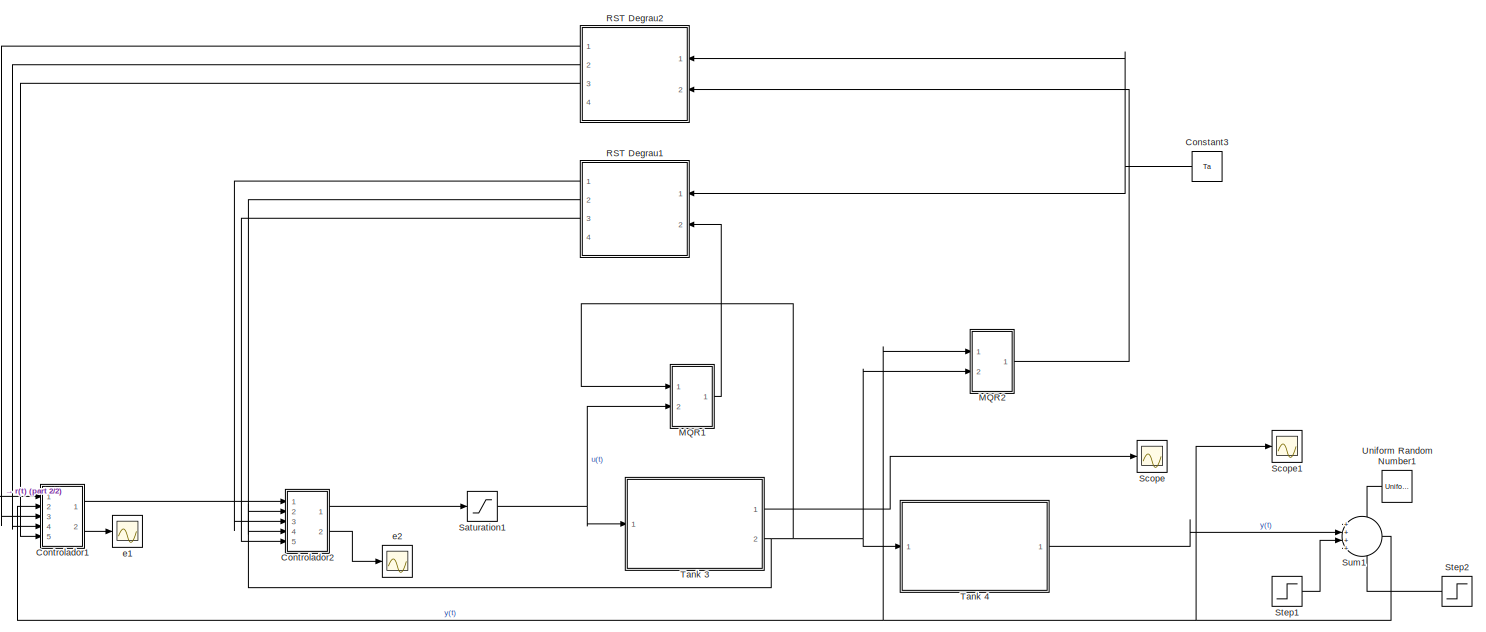
[diagram: root canvas - part 1/2, most of the canvas]
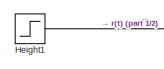
[diagram: root canvas - part 2/2, bottom left region]
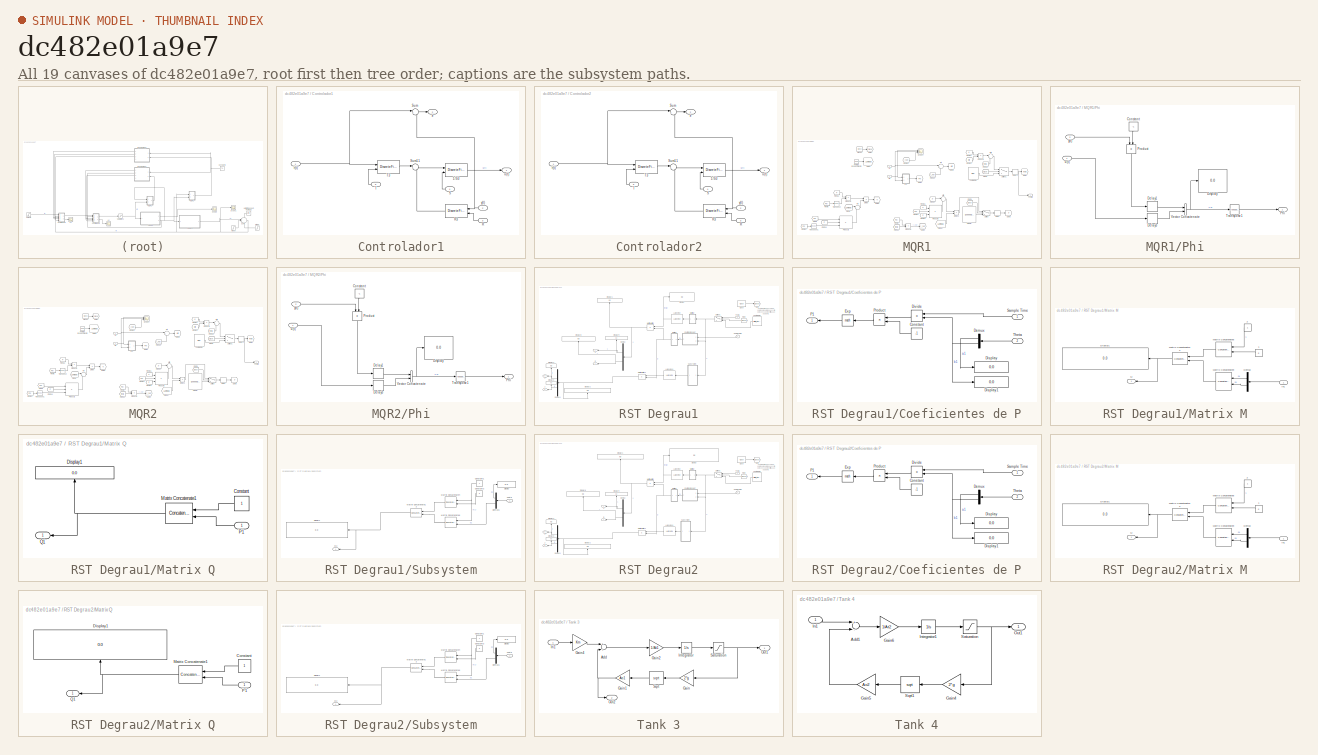
[diagram: thumbnail index - all 19 canvases of the model, root first then tree order]
MODEL slx_dc482e01a9e7
KIND model
CONFIG AbsTol = auto
CONFIG EnableMultiTasking = off
CONFIG FixedStep = 0.1
CONFIG InitFcn = g = 981\nKm = 3.3\nAo1 = 0.17\nAt1 = 15.5528\nAo2 = 0.17\nAt2 = 15.5528\nTa = 0.1\ninitial_theta = [rand(1,2)]
CONFIG MaxStep = auto
CONFIG MinStep = auto
CONFIG RelTol = 1e-3
CONFIG SampleTimeConstraint = Unconstrained
CONFIG Solver = FixedStepAuto
CONFIG SolverName = FixedStepAuto
CONFIG StartTime = 0.0
CONFIG StopTime = 1000
BLOCK [Constant] Constant3
  Value = Ta
BLOCK [SubSystem] Controlador1
  Ports = [5, 2]
  RequestExecContextInheritance = off
BLOCK [DiscreteFilter] Controlador1/1//S3
  Denominator = 1
  DenominatorSource = Input port
  InputPortMap = u0,p3
  Numerator = 1
  Ports = [2, 1]
  SampleTime = Ta
  a0EqualsOne = on
BLOCK [Inport] Controlador1/R
  IconDisplay = Port number
  Port = 3
BLOCK [DiscreteFilter] Controlador1/R3
  Denominator = 1
  InputPortMap = u0,p1
  Numerator = [-620.2 131.3]
  NumeratorSource = Input port
  Ports = [2, 1]
  SampleTime = Ta
BLOCK [Inport] Controlador1/S
  IconDisplay = Port number
  Port = 4
BLOCK [Sum] Controlador1/Sum
  IconShape = round
  InputSameDT = off
  Inputs = |+-
  OutDataTypeStr = Inherit: Inherit via internal rule
  Ports = [2, 1]
  SaturateOnIntegerOverflow = off
BLOCK [Sum] Controlador1/Sum11
  IconShape = round
  InputSameDT = off
  Inputs = |+-
  OutDataTypeStr = Inherit: Inherit via internal rule
  Ports = [2, 1]
  SaturateOnIntegerOverflow = off
BLOCK [Inport] Controlador1/T
  IconDisplay = Port number
  Port = 5
BLOCK [DiscreteFilter] Controlador1/T3
  Denominator = 1
  InputPortMap = u0,p1
  Numerator = 13.39
  NumeratorSource = Input port
  Ports = [2, 1]
  SampleTime = Ta
BLOCK [Outport] Controlador1/e 
  IconDisplay = Port number
  Port = 2
BLOCK [Inport] Controlador1/r(t)
  IconDisplay = Port number
BLOCK [Outport] Controlador1/u(t)
  IconDisplay = Port number
BLOCK [Inport] Controlador1/y(t)
  IconDisplay = Port number
  Port = 2
BLOCK [SubSystem] Controlador2
  Ports = [5, 2]
  RequestExecContextInheritance = off
BLOCK [DiscreteFilter] Controlador2/1//S3
  Denominator = 1
  DenominatorSource = Input port
  InputPortMap = u0,p3
  Numerator = 1
  Ports = [2, 1]
  SampleTime = Ta
  a0EqualsOne = on
BLOCK [Inport] Controlador2/R
  IconDisplay = Port number
  Port = 3
BLOCK [DiscreteFilter] Controlador2/R3
  Denominator = 1
  InputPortMap = u0,p1
  Numerator = [-620.2 131.3]
  NumeratorSource = Input port
  Ports = [2, 1]
  SampleTime = Ta
BLOCK [Inport] Controlador2/S
  IconDisplay = Port number
  Port = 4
BLOCK [Sum] Controlador2/Sum
  IconShape = round
  InputSameDT = off
  Inputs = |+-
  OutDataTypeStr = Inherit: Inherit via internal rule
  Ports = [2, 1]
  SaturateOnIntegerOverflow = off
BLOCK [Sum] Controlador2/Sum11
  IconShape = round
  InputSameDT = off
  Inputs = |+-
  OutDataTypeStr = Inherit: Inherit via internal rule
  Ports = [2, 1]
  SaturateOnIntegerOverflow = off
BLOCK [Inport] Controlador2/T
  IconDisplay = Port number
  Port = 5
BLOCK [DiscreteFilter] Controlador2/T3
  Denominator = 1
  InputPortMap = u0,p1
  Numerator = 13.39
  NumeratorSource = Input port
  Ports = [2, 1]
  SampleTime = Ta
BLOCK [Outport] Controlador2/e 
  IconDisplay = Port number
  Port = 2
BLOCK [Inport] Controlador2/r(t)
  IconDisplay = Port number
BLOCK [Outport] Controlador2/u(t)
  IconDisplay = Port number
BLOCK [Inport] Controlador2/y(t)
  IconDisplay = Port number
  Port = 2
BLOCK [Step] Height1
  After = 10
  SampleTime = 0
  Time = 0
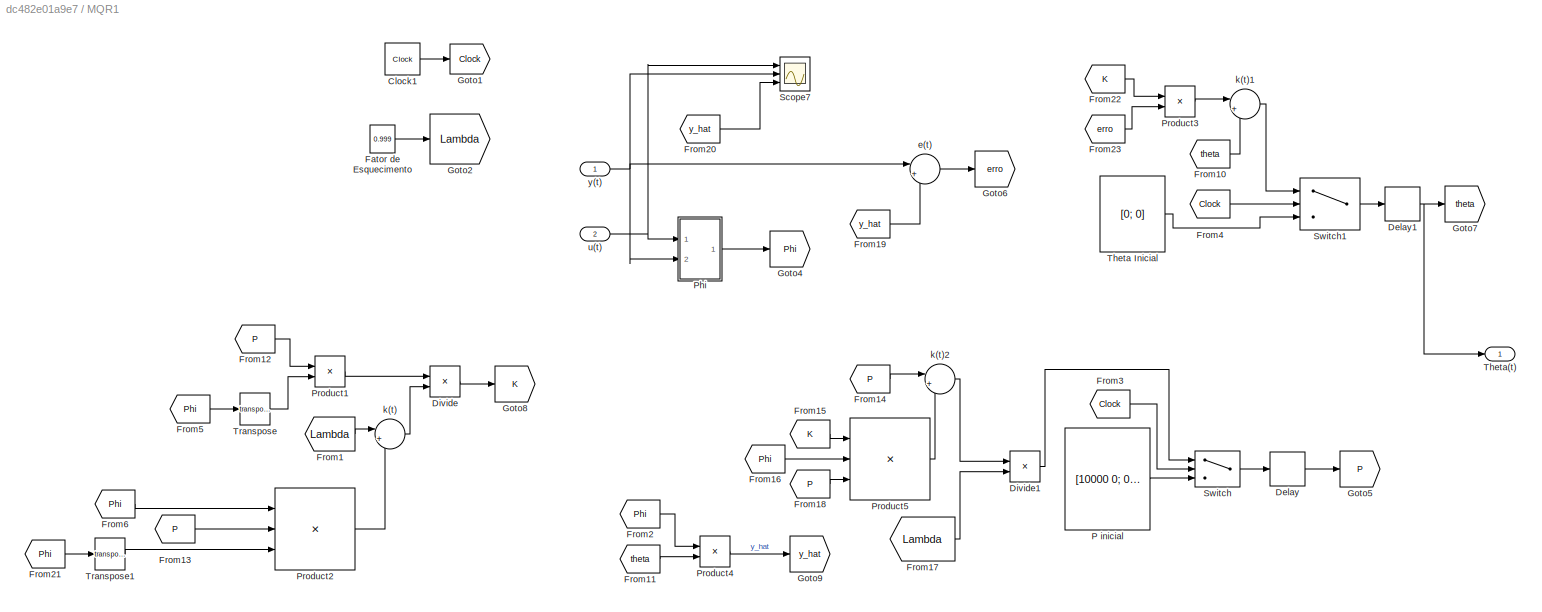
BLOCK [SubSystem] MQR1
  Ports = [2, 1]
  RequestExecContextInheritance = off
BLOCK [Clock] MQR1/Clock1
BLOCK [Delay] MQR1/Delay
  DelayLength = 1
  InitialCondition = 0
  InputPortMap = u0
  Ports = [1, 1]
BLOCK [Delay] MQR1/Delay1
  DelayLength = 1
  InitialCondition = 0
  InputPortMap = u0
  Ports = [1, 1]
BLOCK [Product] MQR1/Divide
  InputSameDT = off
  Inputs = */
  OutDataTypeStr = Inherit: Inherit via internal rule
  Ports = [2, 1]
  RndMeth = Floor
  SaturateOnIntegerOverflow = off
BLOCK [Product] MQR1/Divide1
  InputSameDT = off
  Inputs = */
  OutDataTypeStr = Inherit: Inherit via internal rule
  Ports = [2, 1]
  RndMeth = Floor
  SaturateOnIntegerOverflow = off
BLOCK [Constant] MQR1/Fator de Esquecimento 
  Value = 0.999
BLOCK [From] MQR1/From1
  GotoTag = Lambda
BLOCK [From] MQR1/From10
  GotoTag = theta
BLOCK [From] MQR1/From11
  GotoTag = theta
BLOCK [From] MQR1/From12
  GotoTag = P
BLOCK [From] MQR1/From13
  GotoTag = P
BLOCK [From] MQR1/From14
  GotoTag = P
BLOCK [From] MQR1/From15
  GotoTag = K
BLOCK [From] MQR1/From16
  GotoTag = Phi
BLOCK [From] MQR1/From17
  GotoTag = Lambda
BLOCK [From] MQR1/From18
  GotoTag = P
BLOCK [From] MQR1/From19
  GotoTag = y_hat
BLOCK [From] MQR1/From2
  GotoTag = Phi
BLOCK [From] MQR1/From20
  GotoTag = y_hat
BLOCK [From] MQR1/From21
  GotoTag = Phi
BLOCK [From] MQR1/From22
  GotoTag = K
BLOCK [From] MQR1/From23
  GotoTag = erro
BLOCK [From] MQR1/From3
  GotoTag = Clock
BLOCK [From] MQR1/From4
  GotoTag = Clock
BLOCK [From] MQR1/From5
  GotoTag = Phi
BLOCK [From] MQR1/From6
  GotoTag = Phi
BLOCK [Goto] MQR1/Goto1
  GotoTag = Clock
BLOCK [Goto] MQR1/Goto2
  GotoTag = Lambda
BLOCK [Goto] MQR1/Goto4
  GotoTag = Phi
BLOCK [Goto] MQR1/Goto5
  GotoTag = P
BLOCK [Goto] MQR1/Goto6
  GotoTag = erro
BLOCK [Goto] MQR1/Goto7
  GotoTag = theta
BLOCK [Goto] MQR1/Goto8
  GotoTag = K
BLOCK [Goto] MQR1/Goto9
  GotoTag = y_hat
BLOCK [Constant] MQR1/P inicial
  Value = [10000 0; 0 10000]
BLOCK [SubSystem] MQR1/Phi
  Ports = [2, 1]
  RequestExecContextInheritance = off
BLOCK [Constant] MQR1/Phi/Constant
  Value = -1
BLOCK [Delay] MQR1/Phi/Delay1
  DelayLength = 1
  InputPortMap = u0
  Ports = [1, 1]
BLOCK [Delay] MQR1/Phi/Delay3
  DelayLength = 1
  InputPortMap = u0
  Ports = [1, 1]
BLOCK [Display] MQR1/Phi/Display
  Decimation = 1
  Ports = [1]
BLOCK [Outport] MQR1/Phi/Phi
  IconDisplay = Port number
BLOCK [Product] MQR1/Phi/Product
  InputSameDT = off
  OutDataTypeStr = Inherit: Inherit via internal rule
  Ports = [2, 1]
  RndMeth = Floor
  SaturateOnIntegerOverflow = off
BLOCK [Math] MQR1/Phi/Transpose1
  Operator = transpose
  Ports = [1, 1]
BLOCK [Concatenate] MQR1/Phi/Vector Concatenate
  Ports = [2, 1]
BLOCK [Inport] MQR1/Phi/u(t)
  IconDisplay = Port number
BLOCK [Inport] MQR1/Phi/y(t)
  IconDisplay = Port number
  Port = 2
BLOCK [Product] MQR1/Product1
  InputSameDT = off
  Multiplication = Matrix(*)
  OutDataTypeStr = Inherit: Inherit via internal rule
  Ports = [2, 1]
  RndMeth = Floor
  SaturateOnIntegerOverflow = off
BLOCK [Product] MQR1/Product2
  InputSameDT = off
  Inputs = 3
  Multiplication = Matrix(*)
  OutDataTypeStr = Inherit: Inherit via internal rule
  Ports = [3, 1]
  RndMeth = Floor
  SaturateOnIntegerOverflow = off
BLOCK [Product] MQR1/Product3
  InputSameDT = off
  Multiplication = Matrix(*)
  OutDataTypeStr = Inherit: Inherit via internal rule
  Ports = [2, 1]
  RndMeth = Floor
  SaturateOnIntegerOverflow = off
BLOCK [Product] MQR1/Product4
  InputSameDT = off
  Multiplication = Matrix(*)
  OutDataTypeStr = Inherit: Inherit via internal rule
  Ports = [2, 1]
  RndMeth = Floor
  SaturateOnIntegerOverflow = off
BLOCK [Product] MQR1/Product5
  InputSameDT = off
  Inputs = 3
  Multiplication = Matrix(*)
  OutDataTypeStr = Inherit: Inherit via internal rule
  Ports = [3, 1]
  RndMeth = Floor
  SaturateOnIntegerOverflow = off
BLOCK [Scope] MQR1/Scope7
  Floating = off
  NumInputPorts = 3
  Ports = [3]
  ScopeSpecificationString = Simulink.scopes.TimeScopeBlockCfg('CurrentConfiguration', extmgr.ConfigurationSet(extmgr.Configuration('Core','General UI',true,'FigureColor',[0.156862745098039 0.156862745098039 0.156862745098039]),extmgr.Configuration('Core','Source UI',true),extmgr.Configuration('Sources','WiredSimulink',true,'DataLoggingVariableName','ScopeData1','DataLoggingSaveFormat','StructureWithTime','DataLoggingDecimati...<+3159ch>
BLOCK [Switch] MQR1/Switch
  Criteria = u2 > Threshold
  InputSameDT = off
  SaturateOnIntegerOverflow = off
BLOCK [Switch] MQR1/Switch1
  Criteria = u2 > Threshold
  InputSameDT = off
  SaturateOnIntegerOverflow = off
BLOCK [Constant] MQR1/Theta Inicial 
  Value = [0; 0]
BLOCK [Outport] MQR1/Theta(t) 
  IconDisplay = Port number
BLOCK [Math] MQR1/Transpose
  Operator = transpose
  Ports = [1, 1]
BLOCK [Math] MQR1/Transpose1
  Operator = transpose
  Ports = [1, 1]
BLOCK [Sum] MQR1/e(t)
  IconShape = round
  InputSameDT = off
  Inputs = |+-
  OutDataTypeStr = Inherit: Inherit via internal rule
  Ports = [2, 1]
  SaturateOnIntegerOverflow = off
BLOCK [Sum] MQR1/k(t)
  IconShape = round
  InputSameDT = off
  Inputs = |++
  OutDataTypeStr = Inherit: Inherit via internal rule
  Ports = [2, 1]
  SaturateOnIntegerOverflow = off
BLOCK [Sum] MQR1/k(t)1
  IconShape = round
  InputSameDT = off
  Inputs = |++
  OutDataTypeStr = Inherit: Inherit via internal rule
  Ports = [2, 1]
  SaturateOnIntegerOverflow = off
BLOCK [Sum] MQR1/k(t)2
  IconShape = round
  InputSameDT = off
  Inputs = |+-
  OutDataTypeStr = Inherit: Inherit via internal rule
  Ports = [2, 1]
  SaturateOnIntegerOverflow = off
BLOCK [Inport] MQR1/u(t) 
  IconDisplay = Port number
  Port = 2
BLOCK [Inport] MQR1/y(t)
  IconDisplay = Port number
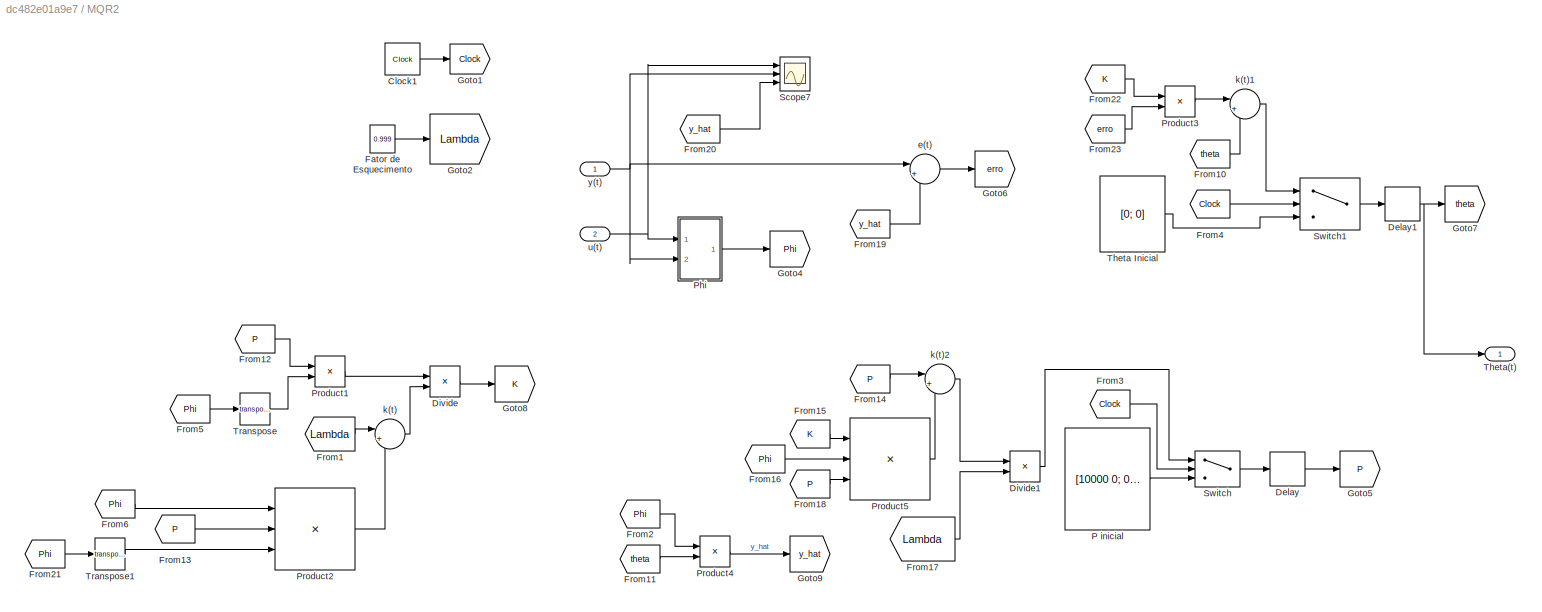
BLOCK [SubSystem] MQR2
  Ports = [2, 1]
  RequestExecContextInheritance = off
BLOCK [Clock] MQR2/Clock1
BLOCK [Delay] MQR2/Delay
  DelayLength = 1
  InitialCondition = 0
  InputPortMap = u0
  Ports = [1, 1]
BLOCK [Delay] MQR2/Delay1
  DelayLength = 1
  InitialCondition = 0
  InputPortMap = u0
  Ports = [1, 1]
BLOCK [Product] MQR2/Divide
  InputSameDT = off
  Inputs = */
  OutDataTypeStr = Inherit: Inherit via internal rule
  Ports = [2, 1]
  RndMeth = Floor
  SaturateOnIntegerOverflow = off
BLOCK [Product] MQR2/Divide1
  InputSameDT = off
  Inputs = */
  OutDataTypeStr = Inherit: Inherit via internal rule
  Ports = [2, 1]
  RndMeth = Floor
  SaturateOnIntegerOverflow = off
BLOCK [Constant] MQR2/Fator de Esquecimento 
  Value = 0.999
BLOCK [From] MQR2/From1
  GotoTag = Lambda
BLOCK [From] MQR2/From10
  GotoTag = theta
BLOCK [From] MQR2/From11
  GotoTag = theta
BLOCK [From] MQR2/From12
  GotoTag = P
BLOCK [From] MQR2/From13
  GotoTag = P
BLOCK [From] MQR2/From14
  GotoTag = P
BLOCK [From] MQR2/From15
  GotoTag = K
BLOCK [From] MQR2/From16
  GotoTag = Phi
BLOCK [From] MQR2/From17
  GotoTag = Lambda
BLOCK [From] MQR2/From18
  GotoTag = P
BLOCK [From] MQR2/From19
  GotoTag = y_hat
BLOCK [From] MQR2/From2
  GotoTag = Phi
BLOCK [From] MQR2/From20
  GotoTag = y_hat
BLOCK [From] MQR2/From21
  GotoTag = Phi
BLOCK [From] MQR2/From22
  GotoTag = K
BLOCK [From] MQR2/From23
  GotoTag = erro
BLOCK [From] MQR2/From3
  GotoTag = Clock
BLOCK [From] MQR2/From4
  GotoTag = Clock
BLOCK [From] MQR2/From5
  GotoTag = Phi
BLOCK [From] MQR2/From6
  GotoTag = Phi
BLOCK [Goto] MQR2/Goto1
  GotoTag = Clock
BLOCK [Goto] MQR2/Goto2
  GotoTag = Lambda
BLOCK [Goto] MQR2/Goto4
  GotoTag = Phi
BLOCK [Goto] MQR2/Goto5
  GotoTag = P
BLOCK [Goto] MQR2/Goto6
  GotoTag = erro
BLOCK [Goto] MQR2/Goto7
  GotoTag = theta
BLOCK [Goto] MQR2/Goto8
  GotoTag = K
BLOCK [Goto] MQR2/Goto9
  GotoTag = y_hat
BLOCK [Constant] MQR2/P inicial
  Value = [10000 0; 0 10000]
BLOCK [SubSystem] MQR2/Phi
  Ports = [2, 1]
  RequestExecContextInheritance = off
BLOCK [Constant] MQR2/Phi/Constant
  Value = -1
BLOCK [Delay] MQR2/Phi/Delay1
  DelayLength = 1
  InputPortMap = u0
  Ports = [1, 1]
BLOCK [Delay] MQR2/Phi/Delay3
  DelayLength = 1
  InputPortMap = u0
  Ports = [1, 1]
BLOCK [Display] MQR2/Phi/Display
  Decimation = 1
  Ports = [1]
BLOCK [Outport] MQR2/Phi/Phi
  IconDisplay = Port number
BLOCK [Product] MQR2/Phi/Product
  InputSameDT = off
  OutDataTypeStr = Inherit: Inherit via internal rule
  Ports = [2, 1]
  RndMeth = Floor
  SaturateOnIntegerOverflow = off
BLOCK [Math] MQR2/Phi/Transpose1
  Operator = transpose
  Ports = [1, 1]
BLOCK [Concatenate] MQR2/Phi/Vector Concatenate
  Ports = [2, 1]
BLOCK [Inport] MQR2/Phi/u(t)
  IconDisplay = Port number
BLOCK [Inport] MQR2/Phi/y(t)
  IconDisplay = Port number
  Port = 2
BLOCK [Product] MQR2/Product1
  InputSameDT = off
  Multiplication = Matrix(*)
  OutDataTypeStr = Inherit: Inherit via internal rule
  Ports = [2, 1]
  RndMeth = Floor
  SaturateOnIntegerOverflow = off
BLOCK [Product] MQR2/Product2
  InputSameDT = off
  Inputs = 3
  Multiplication = Matrix(*)
  OutDataTypeStr = Inherit: Inherit via internal rule
  Ports = [3, 1]
  RndMeth = Floor
  SaturateOnIntegerOverflow = off
BLOCK [Product] MQR2/Product3
  InputSameDT = off
  Multiplication = Matrix(*)
  OutDataTypeStr = Inherit: Inherit via internal rule
  Ports = [2, 1]
  RndMeth = Floor
  SaturateOnIntegerOverflow = off
BLOCK [Product] MQR2/Product4
  InputSameDT = off
  Multiplication = Matrix(*)
  OutDataTypeStr = Inherit: Inherit via internal rule
  Ports = [2, 1]
  RndMeth = Floor
  SaturateOnIntegerOverflow = off
BLOCK [Product] MQR2/Product5
  InputSameDT = off
  Inputs = 3
  Multiplication = Matrix(*)
  OutDataTypeStr = Inherit: Inherit via internal rule
  Ports = [3, 1]
  RndMeth = Floor
  SaturateOnIntegerOverflow = off
BLOCK [Scope] MQR2/Scope7
  Floating = off
  NumInputPorts = 3
  Ports = [3]
  ScopeSpecificationString = Simulink.scopes.TimeScopeBlockCfg('CurrentConfiguration', extmgr.ConfigurationSet(extmgr.Configuration('Core','General UI',true,'FigureColor',[0.156862745098039 0.156862745098039 0.156862745098039]),extmgr.Configuration('Core','Source UI',true),extmgr.Configuration('Sources','WiredSimulink',true,'DataLoggingVariableName','ScopeData1','DataLoggingSaveFormat','StructureWithTime','DataLoggingDecimati...<+3159ch>
BLOCK [Switch] MQR2/Switch
  Criteria = u2 > Threshold
  InputSameDT = off
  SaturateOnIntegerOverflow = off
BLOCK [Switch] MQR2/Switch1
  Criteria = u2 > Threshold
  InputSameDT = off
  SaturateOnIntegerOverflow = off
BLOCK [Constant] MQR2/Theta Inicial 
  Value = [0; 0]
BLOCK [Outport] MQR2/Theta(t) 
  IconDisplay = Port number
BLOCK [Math] MQR2/Transpose
  Operator = transpose
  Ports = [1, 1]
BLOCK [Math] MQR2/Transpose1
  Operator = transpose
  Ports = [1, 1]
BLOCK [Sum] MQR2/e(t)
  IconShape = round
  InputSameDT = off
  Inputs = |+-
  OutDataTypeStr = Inherit: Inherit via internal rule
  Ports = [2, 1]
  SaturateOnIntegerOverflow = off
BLOCK [Sum] MQR2/k(t)
  IconShape = round
  InputSameDT = off
  Inputs = |++
  OutDataTypeStr = Inherit: Inherit via internal rule
  Ports = [2, 1]
  SaturateOnIntegerOverflow = off
BLOCK [Sum] MQR2/k(t)1
  IconShape = round
  InputSameDT = off
  Inputs = |++
  OutDataTypeStr = Inherit: Inherit via internal rule
  Ports = [2, 1]
  SaturateOnIntegerOverflow = off
BLOCK [Sum] MQR2/k(t)2
  IconShape = round
  InputSameDT = off
  Inputs = |+-
  OutDataTypeStr = Inherit: Inherit via internal rule
  Ports = [2, 1]
  SaturateOnIntegerOverflow = off
BLOCK [Inport] MQR2/u(t) 
  IconDisplay = Port number
  Port = 2
BLOCK [Inport] MQR2/y(t)
  IconDisplay = Port number
BLOCK [SubSystem] RST Degrau1
  Ports = [2, 4]
  RequestExecContextInheritance = off
BLOCK [Reference] RST Degrau1/ LU Inverse  REF=dspinverses/ LU Inverse
  Ports = [1, 1]
  SourceBlock = dspinverses/ LU Inverse
  SourceProductBaseCode = DS
  SourceProductName = DSP System Toolbox
  SourceType = LU Inverse
BLOCK [Reference] RST Degrau1/ LU Inverse1  REF=dspinverses/ LU Inverse
  Ports = [1, 1]
  SourceBlock = dspinverses/ LU Inverse
  SourceProductBaseCode = DS
  SourceProductName = DSP System Toolbox
  SourceType = LU Inverse
BLOCK [Clock] RST Degrau1/Clock
  DisplayTime = on
BLOCK [SubSystem] RST Degrau1/Coeficientes de P
  Ports = [2, 1]
  RequestExecContextInheritance = off
BLOCK [Constant] RST Degrau1/Coeficientes de P/Constant
  Value = -1
BLOCK [Demux] RST Degrau1/Coeficientes de P/Demux
  DisplayOption = bar
  Outputs = 2
  Ports = [1, 2]
BLOCK [Display] RST Degrau1/Coeficientes de P/Display
  Decimation = 1
  Ports = [1]
BLOCK [Display] RST Degrau1/Coeficientes de P/Display1
  Decimation = 1
  Ports = [1]
BLOCK [Product] RST Degrau1/Coeficientes de P/Divide
  InputSameDT = off
  Inputs = //
  OutDataTypeStr = Inherit: Inherit via internal rule
  Ports = [2, 1]
  RndMeth = Floor
  SaturateOnIntegerOverflow = off
BLOCK [Math] RST Degrau1/Coeficientes de P/Exp
  Ports = [1, 1]
BLOCK [Outport] RST Degrau1/Coeficientes de P/P1
  IconDisplay = Port number
BLOCK [Product] RST Degrau1/Coeficientes de P/Product
  InputSameDT = off
  OutDataTypeStr = Inherit: Inherit via internal rule
  Ports = [2, 1]
  RndMeth = Floor
  SaturateOnIntegerOverflow = off
BLOCK [Inport] RST Degrau1/Coeficientes de P/Sample Time
  IconDisplay = Port number
BLOCK [Inport] RST Degrau1/Coeficientes de P/Theta
  IconDisplay = Port number
  Port = 2
BLOCK [Demux] RST Degrau1/Demux
  DisplayOption = bar
  Outputs = 2
  Ports = [1, 2]
BLOCK [Demux] RST Degrau1/Demux1
  DisplayOption = bar
  Outputs = 2
  Ports = [1, 2]
BLOCK [Display] RST Degrau1/Display
  Decimation = 1
  Ports = [1]
BLOCK [Display] RST Degrau1/Display1
  Decimation = 1
  Ports = [1]
BLOCK [Display] RST Degrau1/Display2
  Decimation = 1
  Ports = [1]
BLOCK [Display] RST Degrau1/Display3
  Decimation = 1
  Ports = [1]
BLOCK [Display] RST Degrau1/Display4
  Decimation = 1
  Ports = [1]
BLOCK [Display] RST Degrau1/Display8
  Decimation = 1
  Ports = [1]
BLOCK [Display] RST Degrau1/Display9
  Decimation = 1
  Ports = [1]
BLOCK [From] RST Degrau1/From
  GotoTag = Clock3
BLOCK [Goto] RST Degrau1/Goto
  GotoTag = Clock3
BLOCK [Outport] RST Degrau1/L
  IconDisplay = Port number
  Port = 4
BLOCK [SubSystem] RST Degrau1/Matrix M
  Ports = [1, 1]
  RequestExecContextInheritance = off
BLOCK [Constant] RST Degrau1/Matrix M/ 1
  Value = 0
BLOCK [Constant] RST Degrau1/Matrix M/2
BLOCK [Demux] RST Degrau1/Matrix M/Demux
  DisplayOption = bar
  Outputs = 2
  Ports = [1, 2]
BLOCK [Display] RST Degrau1/Matrix M/Display1
  Decimation = 1
  Ports = [1]
BLOCK [Inport] RST Degrau1/Matrix M/In1
  IconDisplay = Port number
BLOCK [Outport] RST Degrau1/Matrix M/M
  IconDisplay = Port number
BLOCK [Concatenate] RST Degrau1/Matrix M/Matrix Concatenate12
  Mode = Multidimensional array
  Ports = [2, 1]
BLOCK [Concatenate] RST Degrau1/Matrix M/Matrix Concatenate6
  ConcatenateDimension = 2
  Mode = Multidimensional array
  Ports = [2, 1]
BLOCK [Concatenate] RST Degrau1/Matrix M/Matrix Concatenate9
  ConcatenateDimension = 2
  Mode = Multidimensional array
  Ports = [2, 1]
BLOCK [Product] RST Degrau1/Matrix Multiply
  InputSameDT = off
  Multiplication = Matrix(*)
  OutDataTypeStr = Inherit: Inherit via internal rule
  Ports = [2, 1]
  RndMeth = Floor
  SaturateOnIntegerOverflow = off
BLOCK [Product] RST Degrau1/Matrix Multiply1
  InputSameDT = off
  Multiplication = Matrix(*)
  OutDataTypeStr = Inherit: Inherit via internal rule
  Ports = [2, 1]
  RndMeth = Floor
  SaturateOnIntegerOverflow = off
BLOCK [SubSystem] RST Degrau1/Matrix Q
  Ports = [1, 1]
  RequestExecContextInheritance = off
BLOCK [Constant] RST Degrau1/Matrix Q/Constant
BLOCK [Display] RST Degrau1/Matrix Q/Display1
  Decimation = 1
  Ports = [1]
BLOCK [Concatenate] RST Degrau1/Matrix Q/Matrix Concatenate1
  Mode = Multidimensional array
  Ports = [2, 1]
BLOCK [Inport] RST Degrau1/Matrix Q/P1
  IconDisplay = Port number
BLOCK [Outport] RST Degrau1/Matrix Q/Q1
  IconDisplay = Port number
BLOCK [Outport] RST Degrau1/R
  IconDisplay = Port number
BLOCK [Outport] RST Degrau1/S
  IconDisplay = Port number
  Port = 2
BLOCK [Inport] RST Degrau1/Sample Time
  IconDisplay = Port number
BLOCK [SubSystem] RST Degrau1/Subsystem
  Ports = [1, 1]
  RequestExecContextInheritance = off
BLOCK [Constant] RST Degrau1/Subsystem/Constant1
BLOCK [Constant] RST Degrau1/Subsystem/Constant3
  Value = 0
BLOCK [Demux] RST Degrau1/Subsystem/Demux1
  DisplayOption = bar
  Outputs = 2
  Ports = [1, 2]
BLOCK [Display] RST Degrau1/Subsystem/Display
  Decimation = 1
  Ports = [1]
BLOCK [Display] RST Degrau1/Subsystem/Display1
  Decimation = 1
  Ports = [1]
BLOCK [Outport] RST Degrau1/Subsystem/M2
  IconDisplay = Port number
BLOCK [Concatenate] RST Degrau1/Subsystem/Matrix Concatenate12
  Mode = Multidimensional array
  Ports = [2, 1]
BLOCK [Concatenate] RST Degrau1/Subsystem/Matrix Concatenate4
  ConcatenateDimension = 2
  Mode = Multidimensional array
  Ports = [2, 1]
BLOCK [Concatenate] RST Degrau1/Subsystem/Matrix Concatenate6
  ConcatenateDimension = 2
  Mode = Multidimensional array
  Ports = [2, 1]
BLOCK [Inport] RST Degrau1/Subsystem/Theta
  IconDisplay = Port number
BLOCK [Switch] RST Degrau1/Switch1
  Criteria = u2 > Threshold
  InputSameDT = off
  SaturateOnIntegerOverflow = off
  Threshold = 1
BLOCK [Outport] RST Degrau1/T
  IconDisplay = Port number
  Port = 3
BLOCK [Inport] RST Degrau1/Theta
  IconDisplay = Port number
  Port = 2
BLOCK [Constant] RST Degrau1/Theta Inicial
  Value = initial_theta
BLOCK [SubSystem] RST Degrau2
  Ports = [2, 4]
  RequestExecContextInheritance = off
BLOCK [Reference] RST Degrau2/ LU Inverse  REF=dspinverses/ LU Inverse
  Ports = [1, 1]
  SourceBlock = dspinverses/ LU Inverse
  SourceProductBaseCode = DS
  SourceProductName = DSP System Toolbox
  SourceType = LU Inverse
BLOCK [Reference] RST Degrau2/ LU Inverse1  REF=dspinverses/ LU Inverse
  Ports = [1, 1]
  SourceBlock = dspinverses/ LU Inverse
  SourceProductBaseCode = DS
  SourceProductName = DSP System Toolbox
  SourceType = LU Inverse
BLOCK [Clock] RST Degrau2/Clock
  DisplayTime = on
BLOCK [SubSystem] RST Degrau2/Coeficientes de P
  Ports = [2, 1]
  RequestExecContextInheritance = off
BLOCK [Constant] RST Degrau2/Coeficientes de P/Constant
  Value = -1
BLOCK [Demux] RST Degrau2/Coeficientes de P/Demux
  DisplayOption = bar
  Outputs = 2
  Ports = [1, 2]
BLOCK [Display] RST Degrau2/Coeficientes de P/Display
  Decimation = 1
  Ports = [1]
BLOCK [Display] RST Degrau2/Coeficientes de P/Display1
  Decimation = 1
  Ports = [1]
BLOCK [Product] RST Degrau2/Coeficientes de P/Divide
  InputSameDT = off
  Inputs = //
  OutDataTypeStr = Inherit: Inherit via internal rule
  Ports = [2, 1]
  RndMeth = Floor
  SaturateOnIntegerOverflow = off
BLOCK [Math] RST Degrau2/Coeficientes de P/Exp
  Ports = [1, 1]
BLOCK [Outport] RST Degrau2/Coeficientes de P/P1
  IconDisplay = Port number
BLOCK [Product] RST Degrau2/Coeficientes de P/Product
  InputSameDT = off
  OutDataTypeStr = Inherit: Inherit via internal rule
  Ports = [2, 1]
  RndMeth = Floor
  SaturateOnIntegerOverflow = off
BLOCK [Inport] RST Degrau2/Coeficientes de P/Sample Time
  IconDisplay = Port number
BLOCK [Inport] RST Degrau2/Coeficientes de P/Theta
  IconDisplay = Port number
  Port = 2
BLOCK [Demux] RST Degrau2/Demux
  DisplayOption = bar
  Outputs = 2
  Ports = [1, 2]
BLOCK [Demux] RST Degrau2/Demux1
  DisplayOption = bar
  Outputs = 2
  Ports = [1, 2]
BLOCK [Display] RST Degrau2/Display
  Decimation = 1
  Ports = [1]
BLOCK [Display] RST Degrau2/Display1
  Decimation = 1
  Ports = [1]
BLOCK [Display] RST Degrau2/Display2
  Decimation = 1
  Ports = [1]
BLOCK [Display] RST Degrau2/Display3
  Decimation = 1
  Ports = [1]
BLOCK [Display] RST Degrau2/Display4
  Decimation = 1
  Ports = [1]
BLOCK [Display] RST Degrau2/Display8
  Decimation = 1
  Ports = [1]
BLOCK [Display] RST Degrau2/Display9
  Decimation = 1
  Ports = [1]
BLOCK [From] RST Degrau2/From
  GotoTag = Clock3
BLOCK [Goto] RST Degrau2/Goto
  GotoTag = Clock3
BLOCK [Outport] RST Degrau2/L
  IconDisplay = Port number
  Port = 4
BLOCK [SubSystem] RST Degrau2/Matrix M
  Ports = [1, 1]
  RequestExecContextInheritance = off
BLOCK [Constant] RST Degrau2/Matrix M/ 1
  Value = 0
BLOCK [Constant] RST Degrau2/Matrix M/2
BLOCK [Demux] RST Degrau2/Matrix M/Demux
  DisplayOption = bar
  Outputs = 2
  Ports = [1, 2]
BLOCK [Display] RST Degrau2/Matrix M/Display1
  Decimation = 1
  Ports = [1]
BLOCK [Inport] RST Degrau2/Matrix M/In1
  IconDisplay = Port number
BLOCK [Outport] RST Degrau2/Matrix M/M
  IconDisplay = Port number
BLOCK [Concatenate] RST Degrau2/Matrix M/Matrix Concatenate12
  Mode = Multidimensional array
  Ports = [2, 1]
BLOCK [Concatenate] RST Degrau2/Matrix M/Matrix Concatenate6
  ConcatenateDimension = 2
  Mode = Multidimensional array
  Ports = [2, 1]
BLOCK [Concatenate] RST Degrau2/Matrix M/Matrix Concatenate9
  ConcatenateDimension = 2
  Mode = Multidimensional array
  Ports = [2, 1]
BLOCK [Product] RST Degrau2/Matrix Multiply
  InputSameDT = off
  Multiplication = Matrix(*)
  OutDataTypeStr = Inherit: Inherit via internal rule
  Ports = [2, 1]
  RndMeth = Floor
  SaturateOnIntegerOverflow = off
BLOCK [Product] RST Degrau2/Matrix Multiply1
  InputSameDT = off
  Multiplication = Matrix(*)
  OutDataTypeStr = Inherit: Inherit via internal rule
  Ports = [2, 1]
  RndMeth = Floor
  SaturateOnIntegerOverflow = off
BLOCK [SubSystem] RST Degrau2/Matrix Q
  Ports = [1, 1]
  RequestExecContextInheritance = off
BLOCK [Constant] RST Degrau2/Matrix Q/Constant
BLOCK [Display] RST Degrau2/Matrix Q/Display1
  Decimation = 1
  Ports = [1]
BLOCK [Concatenate] RST Degrau2/Matrix Q/Matrix Concatenate1
  Mode = Multidimensional array
  Ports = [2, 1]
BLOCK [Inport] RST Degrau2/Matrix Q/P1
  IconDisplay = Port number
BLOCK [Outport] RST Degrau2/Matrix Q/Q1
  IconDisplay = Port number
BLOCK [Outport] RST Degrau2/R
  IconDisplay = Port number
BLOCK [Outport] RST Degrau2/S
  IconDisplay = Port number
  Port = 2
BLOCK [Inport] RST Degrau2/Sample Time
  IconDisplay = Port number
BLOCK [SubSystem] RST Degrau2/Subsystem
  Ports = [1, 1]
  RequestExecContextInheritance = off
BLOCK [Constant] RST Degrau2/Subsystem/Constant1
BLOCK [Constant] RST Degrau2/Subsystem/Constant3
  Value = 0
BLOCK [Demux] RST Degrau2/Subsystem/Demux1
  DisplayOption = bar
  Outputs = 2
  Ports = [1, 2]
BLOCK [Display] RST Degrau2/Subsystem/Display
  Decimation = 1
  Ports = [1]
BLOCK [Display] RST Degrau2/Subsystem/Display1
  Decimation = 1
  Ports = [1]
BLOCK [Outport] RST Degrau2/Subsystem/M2
  IconDisplay = Port number
BLOCK [Concatenate] RST Degrau2/Subsystem/Matrix Concatenate12
  Mode = Multidimensional array
  Ports = [2, 1]
BLOCK [Concatenate] RST Degrau2/Subsystem/Matrix Concatenate4
  ConcatenateDimension = 2
  Mode = Multidimensional array
  Ports = [2, 1]
BLOCK [Concatenate] RST Degrau2/Subsystem/Matrix Concatenate6
  ConcatenateDimension = 2
  Mode = Multidimensional array
  Ports = [2, 1]
BLOCK [Inport] RST Degrau2/Subsystem/Theta
  IconDisplay = Port number
BLOCK [Switch] RST Degrau2/Switch1
  Criteria = u2 > Threshold
  InputSameDT = off
  SaturateOnIntegerOverflow = off
  Threshold = 1
BLOCK [Outport] RST Degrau2/T
  IconDisplay = Port number
  Port = 3
BLOCK [Inport] RST Degrau2/Theta
  IconDisplay = Port number
  Port = 2
BLOCK [Constant] RST Degrau2/Theta Inicial
  Value = initial_theta
BLOCK [Saturate] Saturation1
  InputPortMap = u0
  LowerLimit = -12
  Ports = [1, 1]
  UpperLimit = 12
BLOCK [Scope] Scope
  Floating = off
  NumInputPorts = 1
  Ports = [1]
  ScopeSpecificationString = Simulink.scopes.TimeScopeBlockCfg('CurrentConfiguration', extmgr.ConfigurationSet(extmgr.Configuration('Core','General UI',true),extmgr.Configuration('Core','Source UI',true),extmgr.Configuration('Sources','WiredSimulink',true,'DataLoggingVariableName','ScopeData3'),extmgr.Configuration('Visuals','Time Domain',true,'SerializedDisplays',{struct('MinYLimReal','-3.45703','MaxYLimReal','31.1133','YLab...<+1394ch>
BLOCK [Scope] Scope1
  Floating = off
  NumInputPorts = 1
  Ports = [1]
  ScopeSpecificationString = Simulink.scopes.TimeScopeBlockCfg('CurrentConfiguration', extmgr.ConfigurationSet(extmgr.Configuration('Core','General UI',true),extmgr.Configuration('Core','Source UI',true),extmgr.Configuration('Sources','WiredSimulink',true,'DataLoggingVariableName','ScopeData4'),extmgr.Configuration('Visuals','Time Domain',true,'SerializedDisplays',{struct('MinYLimReal','-3.50068','MaxYLimReal','31.1737','YLab...<+1390ch>
BLOCK [Step] Step1
  SampleTime = 0
  Time = 60
BLOCK [Step] Step2
  After = -1
  SampleTime = 0
  Time = 61
BLOCK [Sum] Sum1
  IconShape = round
  InputSameDT = off
  Inputs = ++++
  OutDataTypeStr = Inherit: Inherit via internal rule
  Ports = [4, 1]
  SaturateOnIntegerOverflow = off
BLOCK [SubSystem] Tank 3
  Ports = [1, 2]
  RequestExecContextInheritance = off
BLOCK [Sum] Tank 3/Add
  InputSameDT = off
  Inputs = +-
  OutDataTypeStr = Inherit: Inherit via internal rule
  Ports = [2, 1]
  SaturateOnIntegerOverflow = off
BLOCK [Gain] Tank 3/Gain
  Gain = 2*g
  OutDataTypeStr = Inherit: Inherit via internal rule
  ParamDataTypeStr = Inherit: Inherit via internal rule
  SaturateOnIntegerOverflow = off
BLOCK [Gain] Tank 3/Gain1
  Gain = Ao1
  OutDataTypeStr = Inherit: Inherit via internal rule
  ParamDataTypeStr = Inherit: Inherit via internal rule
  SaturateOnIntegerOverflow = off
BLOCK [Gain] Tank 3/Gain2
  Gain = 1/At1
  OutDataTypeStr = Inherit: Inherit via internal rule
  ParamDataTypeStr = Inherit: Inherit via internal rule
  SaturateOnIntegerOverflow = off
BLOCK [Gain] Tank 3/Gain4
  Gain = Km
  OutDataTypeStr = Inherit: Inherit via internal rule
  ParamDataTypeStr = Inherit: Inherit via internal rule
  SaturateOnIntegerOverflow = off
BLOCK [Inport] Tank 3/In1
  IconDisplay = Port number
BLOCK [Integrator] Tank 3/Integrator
  Ports = [1, 1]
BLOCK [Outport] Tank 3/Out1
  IconDisplay = Port number
BLOCK [Outport] Tank 3/Out2
  IconDisplay = Port number
  Port = 2
BLOCK [Saturate] Tank 3/Saturation
  InputPortMap = u0
  LowerLimit = 0
  Ports = [1, 1]
  UpperLimit = 30
BLOCK [Sqrt] Tank 3/Sqrt
BLOCK [SubSystem] Tank 4
  Ports = [1, 1]
  RequestExecContextInheritance = off
BLOCK [Sum] Tank 4/Add1
  InputSameDT = off
  Inputs = +-
  OutDataTypeStr = Inherit: Inherit via internal rule
  Ports = [2, 1]
  SaturateOnIntegerOverflow = off
BLOCK [Gain] Tank 4/Gain4
  Gain = 2*g
  OutDataTypeStr = Inherit: Inherit via internal rule
  ParamDataTypeStr = Inherit: Inherit via internal rule
  SaturateOnIntegerOverflow = off
BLOCK [Gain] Tank 4/Gain5
  Gain = Ao2
  OutDataTypeStr = Inherit: Inherit via internal rule
  ParamDataTypeStr = Inherit: Inherit via internal rule
  SaturateOnIntegerOverflow = off
BLOCK [Gain] Tank 4/Gain6
  Gain = 1/At2
  OutDataTypeStr = Inherit: Inherit via internal rule
  ParamDataTypeStr = Inherit: Inherit via internal rule
  SaturateOnIntegerOverflow = off
BLOCK [Inport] Tank 4/In1
  IconDisplay = Port number
BLOCK [Integrator] Tank 4/Integrator1
  Ports = [1, 1]
BLOCK [Outport] Tank 4/Out1
  IconDisplay = Port number
BLOCK [Saturate] Tank 4/Saturation
  InputPortMap = u0
  LowerLimit = 0
  Ports = [1, 1]
  UpperLimit = 30
BLOCK [Sqrt] Tank 4/Sqrt1
BLOCK [UniformRandomNumber] Uniform Random Number1
  Maximum = 0.05
  Minimum = -0.05
  SampleTime = 0
BLOCK [Scope] e1
  Floating = off
  NumInputPorts = 1
  Ports = [1]
  ScopeSpecificationString = Simulink.scopes.TimeScopeBlockCfg('CurrentConfiguration', extmgr.ConfigurationSet(extmgr.Configuration('Core','General UI',true,'FigureColor',[0.156862745098039 0.156862745098039 0.156862745098039]),extmgr.Configuration('Core','Source UI',true),extmgr.Configuration('Sources','WiredSimulink',true,'DataLoggingSaveFormat','StructureWithTime','DataLoggingDecimation','1','DataLoggingDecimateData',true,...<+2791ch>
BLOCK [Scope] e2
  Floating = off
  NumInputPorts = 1
  Ports = [1]
  ScopeSpecificationString = Simulink.scopes.TimeScopeBlockCfg('CurrentConfiguration', extmgr.ConfigurationSet(extmgr.Configuration('Core','General UI',true,'FigureColor',[0.156862745098039 0.156862745098039 0.156862745098039]),extmgr.Configuration('Core','Source UI',true),extmgr.Configuration('Sources','WiredSimulink',true,'DataLoggingSaveFormat','StructureWithTime','DataLoggingDecimation','1','DataLoggingDecimateData',true,...<+2813ch>
ANNOTATION RST Degrau1: Theta Inicializado com um valor qualquer até que ocorra o processo de identificação da planta.
ANNOTATION RST Degrau2: Theta Inicializado com um valor qualquer até que ocorra o processo de identificação da planta.
NET Constant3:1 -> RST Degrau1:1, RST Degrau2:1
LINE Controlador1/1//S3:1 -> Controlador1/u(t):1
LINE Controlador1/R3:1 -> Controlador1/Sum11:2
LINE Controlador1/R:1 -> Controlador1/R3:2
LINE Controlador1/S:1 -> Controlador1/1//S3:2
LINE Controlador1/Sum11:1 -> Controlador1/1//S3:1
LINE Controlador1/Sum:1 -> Controlador1/e :1
LINE Controlador1/T3:1 -> Controlador1/Sum11:1
LINE Controlador1/T:1 -> Controlador1/T3:2
NET Controlador1/r(t):1 -> Controlador1/Sum:1, Controlador1/T3:1
NET Controlador1/y(t):1 -> Controlador1/R3:1, Controlador1/Sum:2
LINE Controlador1:1 -> Controlador2:1
LINE Controlador1:2 -> e1:1
LINE Controlador2/1//S3:1 -> Controlador2/u(t):1
LINE Controlador2/R3:1 -> Controlador2/Sum11:2
LINE Controlador2/R:1 -> Controlador2/R3:2
LINE Controlador2/S:1 -> Controlador2/1//S3:2
LINE Controlador2/Sum11:1 -> Controlador2/1//S3:1
LINE Controlador2/Sum:1 -> Controlador2/e :1
LINE Controlador2/T3:1 -> Controlador2/Sum11:1
LINE Controlador2/T:1 -> Controlador2/T3:2
NET Controlador2/r(t):1 -> Controlador2/Sum:1, Controlador2/T3:1
NET Controlador2/y(t):1 -> Controlador2/R3:1, Controlador2/Sum:2
LINE Controlador2:1 -> Saturation1:1
LINE Controlador2:2 -> e2:1
LINE Height1:1 -> Controlador1:1
LINE MQR1/Clock1:1 -> MQR1/Goto1:1
NET MQR1/Delay1:1 -> MQR1/Goto7:1, MQR1/Theta(t) :1
LINE MQR1/Delay:1 -> MQR1/Goto5:1
LINE MQR1/Divide1:1 -> MQR1/Switch:1
LINE MQR1/Divide:1 -> MQR1/Goto8:1
LINE MQR1/Fator de Esquecimento :1 -> MQR1/Goto2:1
LINE MQR1/From10:1 -> MQR1/k(t)1:2
LINE MQR1/From11:1 -> MQR1/Product4:2
LINE MQR1/From12:1 -> MQR1/Product1:1
LINE MQR1/From13:1 -> MQR1/Product2:2
LINE MQR1/From14:1 -> MQR1/k(t)2:1
LINE MQR1/From15:1 -> MQR1/Product5:1
LINE MQR1/From16:1 -> MQR1/Product5:2
LINE MQR1/From17:1 -> MQR1/Divide1:2
LINE MQR1/From18:1 -> MQR1/Product5:3
LINE MQR1/From19:1 -> MQR1/e(t):2
LINE MQR1/From1:1 -> MQR1/k(t):1
LINE MQR1/From20:1 -> MQR1/Scope7:3
LINE MQR1/From21:1 -> MQR1/Transpose1:1
LINE MQR1/From22:1 -> MQR1/Product3:1
LINE MQR1/From23:1 -> MQR1/Product3:2
LINE MQR1/From2:1 -> MQR1/Product4:1
LINE MQR1/From3:1 -> MQR1/Switch:2
LINE MQR1/From4:1 -> MQR1/Switch1:2
LINE MQR1/From5:1 -> MQR1/Transpose:1
LINE MQR1/From6:1 -> MQR1/Product2:1
LINE MQR1/P inicial:1 -> MQR1/Switch:3
LINE MQR1/Phi/Constant:1 -> MQR1/Phi/Product:2
LINE MQR1/Phi/Delay1:1 -> MQR1/Phi/Vector Concatenate:1
LINE MQR1/Phi/Delay3:1 -> MQR1/Phi/Vector Concatenate:2
LINE MQR1/Phi/Product:1 -> MQR1/Phi/Delay1:1
LINE MQR1/Phi/Transpose1:1 -> MQR1/Phi/Phi:1
NET MQR1/Phi/Vector Concatenate:1 -> MQR1/Phi/Display:1, MQR1/Phi/Transpose1:1
LINE MQR1/Phi/u(t):1 -> MQR1/Phi/Delay3:1
LINE MQR1/Phi/y(t):1 -> MQR1/Phi/Product:1
LINE MQR1/Phi:1 -> MQR1/Goto4:1
LINE MQR1/Product1:1 -> MQR1/Divide:1
LINE MQR1/Product2:1 -> MQR1/k(t):2
LINE MQR1/Product3:1 -> MQR1/k(t)1:1
LINE MQR1/Product4:1 -> MQR1/Goto9:1
LINE MQR1/Product5:1 -> MQR1/k(t)2:2
LINE MQR1/Switch1:1 -> MQR1/Delay1:1
LINE MQR1/Switch:1 -> MQR1/Delay:1
LINE MQR1/Theta Inicial :1 -> MQR1/Switch1:3
LINE MQR1/Transpose1:1 -> MQR1/Product2:3
LINE MQR1/Transpose:1 -> MQR1/Product1:2
LINE MQR1/e(t):1 -> MQR1/Goto6:1
LINE MQR1/k(t)1:1 -> MQR1/Switch1:1
LINE MQR1/k(t)2:1 -> MQR1/Divide1:1
LINE MQR1/k(t):1 -> MQR1/Divide:2
NET MQR1/u(t) :1 -> MQR1/Phi:1, MQR1/Scope7:1
NET MQR1/y(t):1 -> MQR1/Phi:2, MQR1/Scope7:2, MQR1/e(t):1
LINE MQR1:1 -> RST Degrau1:2
LINE MQR2/Clock1:1 -> MQR2/Goto1:1
NET MQR2/Delay1:1 -> MQR2/Goto7:1, MQR2/Theta(t) :1
LINE MQR2/Delay:1 -> MQR2/Goto5:1
LINE MQR2/Divide1:1 -> MQR2/Switch:1
LINE MQR2/Divide:1 -> MQR2/Goto8:1
LINE MQR2/Fator de Esquecimento :1 -> MQR2/Goto2:1
LINE MQR2/From10:1 -> MQR2/k(t)1:2
LINE MQR2/From11:1 -> MQR2/Product4:2
LINE MQR2/From12:1 -> MQR2/Product1:1
LINE MQR2/From13:1 -> MQR2/Product2:2
LINE MQR2/From14:1 -> MQR2/k(t)2:1
LINE MQR2/From15:1 -> MQR2/Product5:1
LINE MQR2/From16:1 -> MQR2/Product5:2
LINE MQR2/From17:1 -> MQR2/Divide1:2
LINE MQR2/From18:1 -> MQR2/Product5:3
LINE MQR2/From19:1 -> MQR2/e(t):2
LINE MQR2/From1:1 -> MQR2/k(t):1
LINE MQR2/From20:1 -> MQR2/Scope7:3
LINE MQR2/From21:1 -> MQR2/Transpose1:1
LINE MQR2/From22:1 -> MQR2/Product3:1
LINE MQR2/From23:1 -> MQR2/Product3:2
LINE MQR2/From2:1 -> MQR2/Product4:1
LINE MQR2/From3:1 -> MQR2/Switch:2
LINE MQR2/From4:1 -> MQR2/Switch1:2
LINE MQR2/From5:1 -> MQR2/Transpose:1
LINE MQR2/From6:1 -> MQR2/Product2:1
LINE MQR2/P inicial:1 -> MQR2/Switch:3
LINE MQR2/Phi/Constant:1 -> MQR2/Phi/Product:2
LINE MQR2/Phi/Delay1:1 -> MQR2/Phi/Vector Concatenate:1
LINE MQR2/Phi/Delay3:1 -> MQR2/Phi/Vector Concatenate:2
LINE MQR2/Phi/Product:1 -> MQR2/Phi/Delay1:1
LINE MQR2/Phi/Transpose1:1 -> MQR2/Phi/Phi:1
NET MQR2/Phi/Vector Concatenate:1 -> MQR2/Phi/Display:1, MQR2/Phi/Transpose1:1
LINE MQR2/Phi/u(t):1 -> MQR2/Phi/Delay3:1
LINE MQR2/Phi/y(t):1 -> MQR2/Phi/Product:1
LINE MQR2/Phi:1 -> MQR2/Goto4:1
LINE MQR2/Product1:1 -> MQR2/Divide:1
LINE MQR2/Product2:1 -> MQR2/k(t):2
LINE MQR2/Product3:1 -> MQR2/k(t)1:1
LINE MQR2/Product4:1 -> MQR2/Goto9:1
LINE MQR2/Product5:1 -> MQR2/k(t)2:2
LINE MQR2/Switch1:1 -> MQR2/Delay1:1
LINE MQR2/Switch:1 -> MQR2/Delay:1
LINE MQR2/Theta Inicial :1 -> MQR2/Switch1:3
LINE MQR2/Transpose1:1 -> MQR2/Product2:3
LINE MQR2/Transpose:1 -> MQR2/Product1:2
LINE MQR2/e(t):1 -> MQR2/Goto6:1
LINE MQR2/k(t)1:1 -> MQR2/Switch1:1
LINE MQR2/k(t)2:1 -> MQR2/Divide1:1
LINE MQR2/k(t):1 -> MQR2/Divide:2
NET MQR2/u(t) :1 -> MQR2/Phi:1, MQR2/Scope7:1
NET MQR2/y(t):1 -> MQR2/Phi:2, MQR2/Scope7:2, MQR2/e(t):1
LINE MQR2:1 -> RST Degrau2:2
LINE RST Degrau1/ LU Inverse1:1 -> RST Degrau1/Matrix Multiply1:1
NET RST Degrau1/ LU Inverse:1 -> RST Degrau1/Display:1, RST Degrau1/Matrix Multiply:1
LINE RST Degrau1/Clock:1 -> RST Degrau1/Goto:1
LINE RST Degrau1/Coeficientes de P/Constant:1 -> RST Degrau1/Coeficientes de P/Product:2
LINE RST Degrau1/Coeficientes de P/Demux:1 -> RST Degrau1/Coeficientes de P/Display:1
NET RST Degrau1/Coeficientes de P/Demux:2 -> RST Degrau1/Coeficientes de P/Display1:1, RST Degrau1/Coeficientes de P/Divide:2
LINE RST Degrau1/Coeficientes de P/Divide:1 -> RST Degrau1/Coeficientes de P/Product:1
LINE RST Degrau1/Coeficientes de P/Exp:1 -> RST Degrau1/Coeficientes de P/P1:1
LINE RST Degrau1/Coeficientes de P/Product:1 -> RST Degrau1/Coeficientes de P/Exp:1
LINE RST Degrau1/Coeficientes de P/Sample Time:1 -> RST Degrau1/Coeficientes de P/Divide:1
LINE RST Degrau1/Coeficientes de P/Theta:1 -> RST Degrau1/Coeficientes de P/Demux:1
LINE RST Degrau1/Coeficientes de P:1 -> RST Degrau1/Matrix Q:1
NET RST Degrau1/Demux1:1 -> RST Degrau1/Display4:1, RST Degrau1/L:1
NET RST Degrau1/Demux1:2 -> RST Degrau1/Display3:1, RST Degrau1/T:1
NET RST Degrau1/Demux:1 -> RST Degrau1/Display9:1, RST Degrau1/S:1
NET RST Degrau1/Demux:2 -> RST Degrau1/Display8:1, RST Degrau1/R:1
LINE RST Degrau1/From:1 -> RST Degrau1/Switch1:2
LINE RST Degrau1/Matrix M/ 1:1 -> RST Degrau1/Matrix M/Matrix Concatenate6:2
LINE RST Degrau1/Matrix M/2:1 -> RST Degrau1/Matrix M/Matrix Concatenate6:1
LINE RST Degrau1/Matrix M/Demux:1 -> RST Degrau1/Matrix M/Matrix Concatenate9:1
LINE RST Degrau1/Matrix M/Demux:2 -> RST Degrau1/Matrix M/Matrix Concatenate9:2
LINE RST Degrau1/Matrix M/In1:1 -> RST Degrau1/Matrix M/Demux:1
NET RST Degrau1/Matrix M/Matrix Concatenate12:1 -> RST Degrau1/Matrix M/Display1:1, RST Degrau1/Matrix M/M:1
LINE RST Degrau1/Matrix M/Matrix Concatenate6:1 -> RST Degrau1/Matrix M/Matrix Concatenate12:1
LINE RST Degrau1/Matrix M/Matrix Concatenate9:1 -> RST Degrau1/Matrix M/Matrix Concatenate12:2
LINE RST Degrau1/Matrix M:1 -> RST Degrau1/ LU Inverse:1
NET RST Degrau1/Matrix Multiply1:1 -> RST Degrau1/Demux1:1, RST Degrau1/Display2:1
NET RST Degrau1/Matrix Multiply:1 -> RST Degrau1/Demux:1, RST Degrau1/Display1:1
LINE RST Degrau1/Matrix Q/Constant:1 -> RST Degrau1/Matrix Q/Matrix Concatenate1:1
NET RST Degrau1/Matrix Q/Matrix Concatenate1:1 -> RST Degrau1/Matrix Q/Display1:1, RST Degrau1/Matrix Q/Q1:1
LINE RST Degrau1/Matrix Q/P1:1 -> RST Degrau1/Matrix Q/Matrix Concatenate1:2
NET RST Degrau1/Matrix Q:1 -> RST Degrau1/Matrix Multiply1:2, RST Degrau1/Matrix Multiply:2
LINE RST Degrau1/Sample Time:1 -> RST Degrau1/Coeficientes de P:1
NET RST Degrau1/Subsystem/Constant1:1 -> RST Degrau1/Subsystem/Matrix Concatenate4:1, RST Degrau1/Subsystem/Matrix Concatenate6:1
LINE RST Degrau1/Subsystem/Constant3:1 -> RST Degrau1/Subsystem/Matrix Concatenate4:2
LINE RST Degrau1/Subsystem/Demux1:1 -> RST Degrau1/Subsystem/Display:1
LINE RST Degrau1/Subsystem/Demux1:2 -> RST Degrau1/Subsystem/Matrix Concatenate6:2
NET RST Degrau1/Subsystem/Matrix Concatenate12:1 -> RST Degrau1/Subsystem/Display1:1, RST Degrau1/Subsystem/M2:1
LINE RST Degrau1/Subsystem/Matrix Concatenate4:1 -> RST Degrau1/Subsystem/Matrix Concatenate12:1
LINE RST Degrau1/Subsystem/Matrix Concatenate6:1 -> RST Degrau1/Subsystem/Matrix Concatenate12:2
LINE RST Degrau1/Subsystem/Theta:1 -> RST Degrau1/Subsystem/Demux1:1
LINE RST Degrau1/Subsystem:1 -> RST Degrau1/ LU Inverse1:1
NET RST Degrau1/Switch1:1 -> RST Degrau1/Coeficientes de P:2, RST Degrau1/Matrix M:1, RST Degrau1/Subsystem:1
LINE RST Degrau1/Theta Inicial:1 -> RST Degrau1/Switch1:3
LINE RST Degrau1/Theta:1 -> RST Degrau1/Switch1:1
LINE RST Degrau1:1 -> Controlador2:3
LINE RST Degrau1:2 -> Controlador2:4
LINE RST Degrau1:3 -> Controlador2:5
LINE RST Degrau2/ LU Inverse1:1 -> RST Degrau2/Matrix Multiply1:1
NET RST Degrau2/ LU Inverse:1 -> RST Degrau2/Display:1, RST Degrau2/Matrix Multiply:1
LINE RST Degrau2/Clock:1 -> RST Degrau2/Goto:1
LINE RST Degrau2/Coeficientes de P/Constant:1 -> RST Degrau2/Coeficientes de P/Product:2
LINE RST Degrau2/Coeficientes de P/Demux:1 -> RST Degrau2/Coeficientes de P/Display:1
NET RST Degrau2/Coeficientes de P/Demux:2 -> RST Degrau2/Coeficientes de P/Display1:1, RST Degrau2/Coeficientes de P/Divide:2
LINE RST Degrau2/Coeficientes de P/Divide:1 -> RST Degrau2/Coeficientes de P/Product:1
LINE RST Degrau2/Coeficientes de P/Exp:1 -> RST Degrau2/Coeficientes de P/P1:1
LINE RST Degrau2/Coeficientes de P/Product:1 -> RST Degrau2/Coeficientes de P/Exp:1
LINE RST Degrau2/Coeficientes de P/Sample Time:1 -> RST Degrau2/Coeficientes de P/Divide:1
LINE RST Degrau2/Coeficientes de P/Theta:1 -> RST Degrau2/Coeficientes de P/Demux:1
LINE RST Degrau2/Coeficientes de P:1 -> RST Degrau2/Matrix Q:1
NET RST Degrau2/Demux1:1 -> RST Degrau2/Display4:1, RST Degrau2/L:1
NET RST Degrau2/Demux1:2 -> RST Degrau2/Display3:1, RST Degrau2/T:1
NET RST Degrau2/Demux:1 -> RST Degrau2/Display9:1, RST Degrau2/S:1
NET RST Degrau2/Demux:2 -> RST Degrau2/Display8:1, RST Degrau2/R:1
LINE RST Degrau2/From:1 -> RST Degrau2/Switch1:2
LINE RST Degrau2/Matrix M/ 1:1 -> RST Degrau2/Matrix M/Matrix Concatenate6:2
LINE RST Degrau2/Matrix M/2:1 -> RST Degrau2/Matrix M/Matrix Concatenate6:1
LINE RST Degrau2/Matrix M/Demux:1 -> RST Degrau2/Matrix M/Matrix Concatenate9:1
LINE RST Degrau2/Matrix M/Demux:2 -> RST Degrau2/Matrix M/Matrix Concatenate9:2
LINE RST Degrau2/Matrix M/In1:1 -> RST Degrau2/Matrix M/Demux:1
NET RST Degrau2/Matrix M/Matrix Concatenate12:1 -> RST Degrau2/Matrix M/Display1:1, RST Degrau2/Matrix M/M:1
LINE RST Degrau2/Matrix M/Matrix Concatenate6:1 -> RST Degrau2/Matrix M/Matrix Concatenate12:1
LINE RST Degrau2/Matrix M/Matrix Concatenate9:1 -> RST Degrau2/Matrix M/Matrix Concatenate12:2
LINE RST Degrau2/Matrix M:1 -> RST Degrau2/ LU Inverse:1
NET RST Degrau2/Matrix Multiply1:1 -> RST Degrau2/Demux1:1, RST Degrau2/Display2:1
NET RST Degrau2/Matrix Multiply:1 -> RST Degrau2/Demux:1, RST Degrau2/Display1:1
LINE RST Degrau2/Matrix Q/Constant:1 -> RST Degrau2/Matrix Q/Matrix Concatenate1:1
NET RST Degrau2/Matrix Q/Matrix Concatenate1:1 -> RST Degrau2/Matrix Q/Display1:1, RST Degrau2/Matrix Q/Q1:1
LINE RST Degrau2/Matrix Q/P1:1 -> RST Degrau2/Matrix Q/Matrix Concatenate1:2
NET RST Degrau2/Matrix Q:1 -> RST Degrau2/Matrix Multiply1:2, RST Degrau2/Matrix Multiply:2
LINE RST Degrau2/Sample Time:1 -> RST Degrau2/Coeficientes de P:1
NET RST Degrau2/Subsystem/Constant1:1 -> RST Degrau2/Subsystem/Matrix Concatenate4:1, RST Degrau2/Subsystem/Matrix Concatenate6:1
LINE RST Degrau2/Subsystem/Constant3:1 -> RST Degrau2/Subsystem/Matrix Concatenate4:2
LINE RST Degrau2/Subsystem/Demux1:1 -> RST Degrau2/Subsystem/Display:1
LINE RST Degrau2/Subsystem/Demux1:2 -> RST Degrau2/Subsystem/Matrix Concatenate6:2
NET RST Degrau2/Subsystem/Matrix Concatenate12:1 -> RST Degrau2/Subsystem/Display1:1, RST Degrau2/Subsystem/M2:1
LINE RST Degrau2/Subsystem/Matrix Concatenate4:1 -> RST Degrau2/Subsystem/Matrix Concatenate12:1
LINE RST Degrau2/Subsystem/Matrix Concatenate6:1 -> RST Degrau2/Subsystem/Matrix Concatenate12:2
LINE RST Degrau2/Subsystem/Theta:1 -> RST Degrau2/Subsystem/Demux1:1
LINE RST Degrau2/Subsystem:1 -> RST Degrau2/ LU Inverse1:1
NET RST Degrau2/Switch1:1 -> RST Degrau2/Coeficientes de P:2, RST Degrau2/Matrix M:1, RST Degrau2/Subsystem:1
LINE RST Degrau2/Theta Inicial:1 -> RST Degrau2/Switch1:3
LINE RST Degrau2/Theta:1 -> RST Degrau2/Switch1:1
LINE RST Degrau2:1 -> Controlador1:3
LINE RST Degrau2:2 -> Controlador1:4
LINE RST Degrau2:3 -> Controlador1:5
NET Saturation1:1 -> MQR1:2, Tank 3:1
LINE Step1:1 -> Sum1:3
LINE Step2:1 -> Sum1:4
NET Sum1:1 -> Controlador1:2, MQR2:1, Scope1:1
LINE Tank 3/Add:1 -> Tank 3/Gain2:1
NET Tank 3/Gain1:1 -> Tank 3/Add:2, Tank 3/Out2:1
LINE Tank 3/Gain2:1 -> Tank 3/Integrator:1
LINE Tank 3/Gain4:1 -> Tank 3/Add:1
LINE Tank 3/Gain:1 -> Tank 3/Sqrt:1
LINE Tank 3/In1:1 -> Tank 3/Gain4:1
LINE Tank 3/Integrator:1 -> Tank 3/Saturation:1
NET Tank 3/Saturation:1 -> Tank 3/Gain:1, Tank 3/Out1:1
LINE Tank 3/Sqrt:1 -> Tank 3/Gain1:1
LINE Tank 3:1 -> Scope:1
NET Tank 3:2 -> Controlador2:2, MQR1:1, MQR2:2, Tank 4:1
LINE Tank 4/Add1:1 -> Tank 4/Gain6:1
LINE Tank 4/Gain4:1 -> Tank 4/Sqrt1:1
LINE Tank 4/Gain5:1 -> Tank 4/Add1:2
LINE Tank 4/Gain6:1 -> Tank 4/Integrator1:1
LINE Tank 4/In1:1 -> Tank 4/Add1:1
LINE Tank 4/Integrator1:1 -> Tank 4/Saturation:1
NET Tank 4/Saturation:1 -> Tank 4/Gain4:1, Tank 4/Out1:1
LINE Tank 4/Sqrt1:1 -> Tank 4/Gain5:1
LINE Tank 4:1 -> Sum1:2
LINE Uniform Random Number1:1 -> Sum1:1
note: NET lines group one-source signal fan-out (src -> all destinations, sorted); 1:1 wires keep LINE
